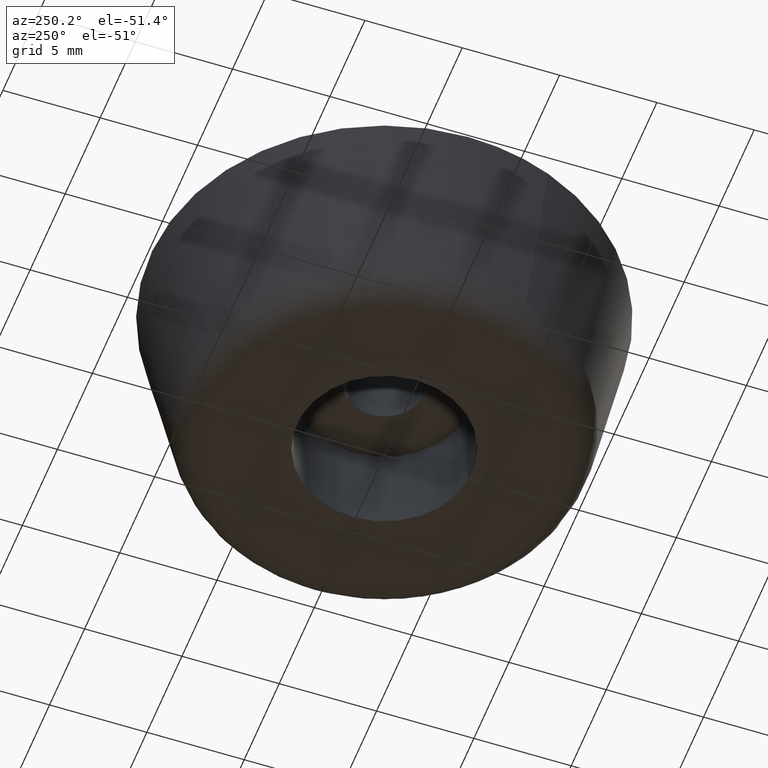
[diagram: clean part render]
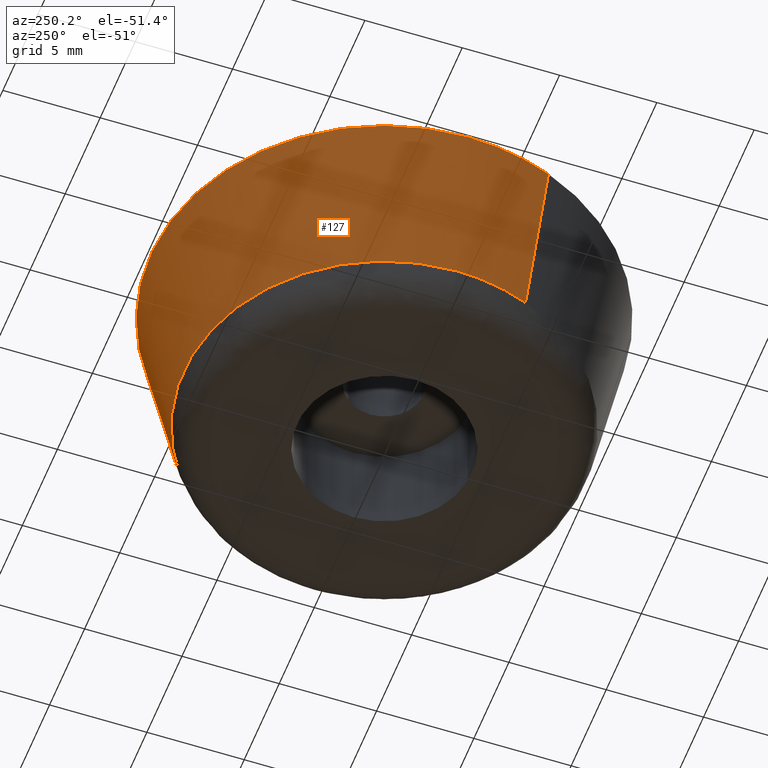
[diagram: same view with one face highlighted and labeled with its STEP entity id]
A machine part, auxiliary view. The second image highlights one B-rep face of the part: STEP entity #127.
In plain terms, the highlighted face is a freeform B-spline surface patch.
Its self-contained STEP definition (entity closure, byte-faithful):
#127=ADVANCED_FACE('',(#289),#288,.T.);
#288=( BOUNDED_SURFACE() B_SPLINE_SURFACE( 2,1,((#467,#468),(#469,#470),(#471,#472),(#473,#474),(#475,#476)), .UNSPECIFIED.,.F.,.F.,.F.) B_SPLINE_SURFACE_WITH_KNOTS((3,2,3),(2,2),(0.00000000000E+000,5.00000000000E-001,1.00000000000E+000),(0.00000000000E+000,1.00000000000E+000), .UNSPECIFIED. ) GEOMETRIC_REPRESENTATION_ITEM() RATIONAL_B_SPLINE_SURFACE(((1.00000000000E+000,1.00000000000E+000),(7.07106781187E-001,7.07106781187E-001),(1.00000000000E+000,1.00000000000E+000),(7.07106781187E-001,7.07106781187E-001),(1.00000000000E+000,1.00000000000E+000))) REPRESENTATION_ITEM('') SURFACE() );
#289=FACE_OUTER_BOUND('',#477,.T.);
#467=CARTESIAN_POINT('',(9.59764558634E+000,3.79732418365E+000,1.60776777301E+000));
#468=CARTESIAN_POINT('',(1.11585032174E+001,4.41488005986E+000,1.00006999949E+001));
#469=CARTESIAN_POINT('',(5.80032140269E+000,1.33949697700E+001,1.60776777301E+000));
#470=CARTESIAN_POINT('',(6.74362315753E+000,1.55733832773E+001,1.00006999949E+001));
#471=CARTESIAN_POINT('',(-3.79732418365E+000,9.59764558634E+000,1.60776777301E+000));
#472=CARTESIAN_POINT('',(-4.41488005986E+000,1.11585032174E+001,1.00006999949E+001));
#473=CARTESIAN_POINT('',(-1.33949697700E+001,5.80032140269E+000,1.60776777301E+000));
#474=CARTESIAN_POINT('',(-1.55733832773E+001,6.74362315753E+000,1.00006999949E+001));
#475=CARTESIAN_POINT('',(-9.59764558634E+000,-3.79732418365E+000,1.60776777301E+000));
#476=CARTESIAN_POINT('',(-1.11585032174E+001,-4.41488005986E+000,1.00006999949E+001));
#477=EDGE_LOOP('',(#566,#567,#568,#569,#570,#571));
#566=ORIENTED_EDGE('',*,*,#621,.T.);
#567=ORIENTED_EDGE('',*,*,#626,.T.);
#568=ORIENTED_EDGE('',*,*,#627,.T.);
#569=ORIENTED_EDGE('',*,*,#604,.T.);
#570=ORIENTED_EDGE('',*,*,#608,.T.);
#571=ORIENTED_EDGE('',*,*,#628,.F.);
#604=EDGE_CURVE('',#741,#742,#743,.T.);
#608=EDGE_CURVE('',#742,#763,#770,.T.);
#621=EDGE_CURVE('',#858,#859,#860,.T.);
#626=EDGE_CURVE('',#859,#885,#892,.T.);
#627=EDGE_CURVE('',#885,#741,#898,.T.);
#628=EDGE_CURVE('',#858,#763,#904,.T.);
#741=VERTEX_POINT('',#1002);
#742=VERTEX_POINT('',#1003);
#743=CIRCLE('',#1007,1.19999992086E+001);
#763=VERTEX_POINT('',#1018);
#770=CIRCLE('',#1026,1.20000000000E+001);
#858=VERTEX_POINT('',#1081);
#859=VERTEX_POINT('',#1082);
#860=CIRCLE('',#1086,1.03215537472E+001);
#885=VERTEX_POINT('',#1100);
#892=CIRCLE('',#1108,1.03215537472E+001);
#898=(BOUNDED_CURVE() B_SPLINE_CURVE(1,(#1109,#1110),.UNSPECIFIED.,.F.,.F.) B_SPLINE_CURVE_WITH_KNOTS((2,2),(0.00000000000E+000,9.99916125088E-001),.UNSPECIFIED.) CURVE() GEOMETRIC_REPRESENTATION_ITEM() RATIONAL_B_SPLINE_CURVE((1.00000000000E+000,1.00000000000E+000)) REPRESENTATION_ITEM('') );
#904=(BOUNDED_CURVE() B_SPLINE_CURVE(1,(#1111,#1112),.UNSPECIFIED.,.F.,.F.) B_SPLINE_CURVE_WITH_KNOTS((2,2),(0.00000000000E+000,1.00000000000E+000),.UNSPECIFIED.) CURVE() GEOMETRIC_REPRESENTATION_ITEM() RATIONAL_B_SPLINE_CURVE((7.50000000000E-001,7.50000000000E-001)) REPRESENTATION_ITEM('') );
#1002=CARTESIAN_POINT('',(-1.11583738648E+001,-4.41482432258E+000,9.99999606358E+000));
#1003=CARTESIAN_POINT('',(-1.20000000000E+001,0.00000000000E+000,1.00000000000E+001));
#1004=CARTESIAN_POINT('',(-7.91445470938E-007,1.98905207327E-006,9.99999803179E+000));
#1005=DIRECTION('',(-1.64017526572E-007,8.60369228197E-007,-1.00000000000E+000));
#1006=DIRECTION('',(9.29864484105E-001,3.67902216900E-001,1.64017673676E-007));
#1007=AXIS2_PLACEMENT_3D('',#1004,#1005,#1006);
#1018=CARTESIAN_POINT('',(1.11576632223E+001,4.41662217279E+000,1.00000000000E+001));
#1023=CARTESIAN_POINT('',(0.00000000000E+000,0.00000000000E+000,1.00000000000E+001));
#1024=DIRECTION('',(6.60305643312E-017,2.35470765630E-016,-1.00000000000E+000));
#1025=DIRECTION('',(-9.29864402291E-001,-3.67902423683E-001,-1.48029736617E-016));
#1026=AXIS2_PLACEMENT_3D('',#1023,#1024,#1025);
#1081=CARTESIAN_POINT('',(9.59764434138E+000,3.79732733021E+000,1.60776777301E+000));
#1082=CARTESIAN_POINT('',(-1.03215536146E+001,1.65442096115E-003,1.60776777301E+000));
#1083=CARTESIAN_POINT('',(1.01138251249E-014,9.48800476251E-017,1.60776777301E+000));
#1084=DIRECTION('',(-6.00116740470E-016,-2.37438365125E-016,1.00000000000E+000));
#1085=DIRECTION('',(9.29864299160E-001,3.67902684345E-001,6.45381344187E-016));
#1086=AXIS2_PLACEMENT_3D('',#1083,#1084,#1085);
#1100=CARTESIAN_POINT('',(-9.59764600711E+000,-3.79732312010E+000,1.60776777301E+000));
#1105=CARTESIAN_POINT('',(1.01138251249E-014,9.48800476251E-017,1.60776777301E+000));
#1106=DIRECTION('',(-6.00116740470E-016,-2.37438365125E-016,1.00000000000E+000));
#1107=DIRECTION('',(9.29864299160E-001,3.67902684345E-001,6.45381344187E-016));
#1108=AXIS2_PLACEMENT_3D('',#1105,#1106,#1107);
#1109=CARTESIAN_POINT('',(-9.59764558634E+000,-3.79732418365E+000,1.60776777301E+000));
#1110=CARTESIAN_POINT('',(-1.11583723006E+001,-4.41482826242E+000,9.99999603843E+000));
#1111=CARTESIAN_POINT('',(9.59764558634E+000,3.79732418365E+000,1.60776777301E+000));
#1112=CARTESIAN_POINT('',(1.11585032174E+001,4.41488005986E+000,1.00006999949E+001));